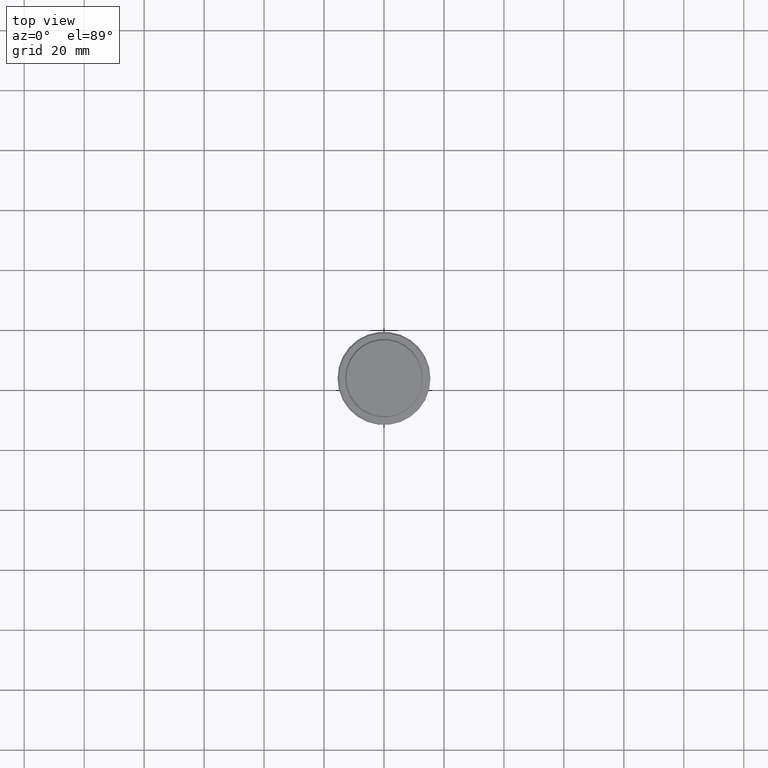
[diagram: clean part render]
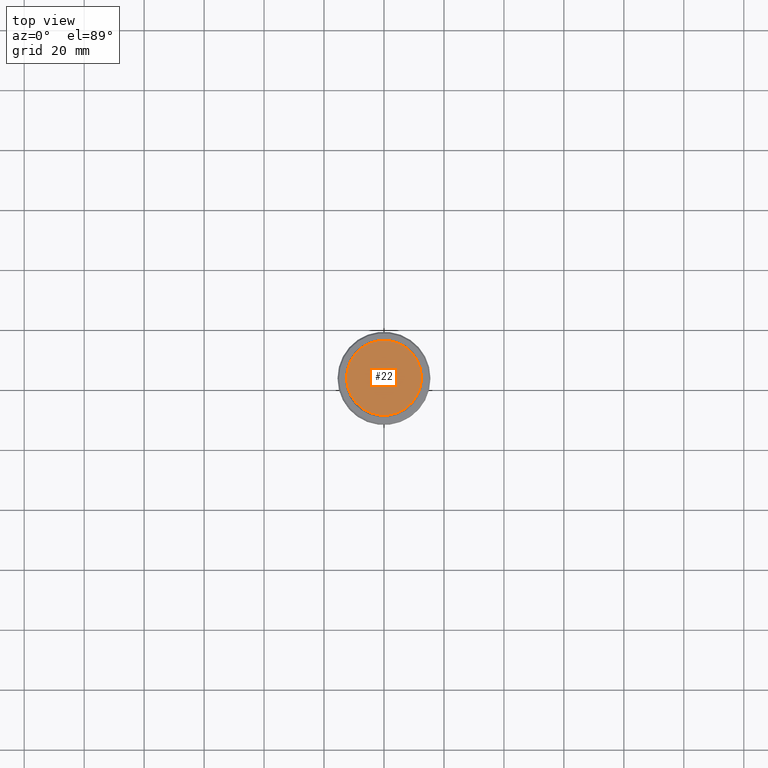
[diagram: same view with one face highlighted and labeled with its STEP entity id]
A machine part, top view. The second image highlights one B-rep face of the part: STEP entity #22.
In plain terms, the highlighted planar face has unit normal (0, -0, 1).
Its self-contained STEP definition (entity closure, byte-faithful):
#22 = ADVANCED_FACE ( 'NONE', ( #717 ), #936, .T. ) ;
#37 = AXIS2_PLACEMENT_3D ( 'NONE', #88, #423, #870 ) ;
#40 = DIRECTION ( 'NONE',  ( -0.000000000000000000, -0.000000000000000000, 1.000000000000000000 ) ) ;
#54 = CARTESIAN_POINT ( 'NONE',  ( 0.000000000000000000, 0.000000000000000000, 0.000000000000000000 ) ) ;
#88 = CARTESIAN_POINT ( 'NONE',  ( 0.000000000000000000, 0.000000000000000000, 0.000000000000000000 ) ) ;
#93 = EDGE_LOOP ( 'NONE', ( #1382, #1064 ) ) ;
#196 = VERTEX_POINT ( 'NONE', #320 ) ;
#272 = DIRECTION ( 'NONE',  ( 1.000000000000000000, 0.000000000000000000, 0.000000000000000000 ) ) ;
#320 = CARTESIAN_POINT ( 'NONE',  ( 12.50000000000001243, 1.561424668912876097E-15, 0.000000000000000000 ) ) ;
#389 = CIRCLE ( 'NONE', #37, 12.50000000000001243 ) ;
#423 = DIRECTION ( 'NONE',  ( -0.000000000000000000, -0.000000000000000000, 1.000000000000000000 ) ) ;
#479 = DIRECTION ( 'NONE',  ( 1.000000000000000000, 0.000000000000000000, 0.000000000000000000 ) ) ;
#621 = EDGE_CURVE ( 'NONE', #682, #196, #389, .T. ) ;
#682 = VERTEX_POINT ( 'NONE', #1134 ) ;
#717 = FACE_OUTER_BOUND ( 'NONE', #93, .T. ) ;
#751 = AXIS2_PLACEMENT_3D ( 'NONE', #1032, #40, #272 ) ;
#756 = AXIS2_PLACEMENT_3D ( 'NONE', #54, #958, #479 ) ;
#870 = DIRECTION ( 'NONE',  ( 1.000000000000000000, 0.000000000000000000, 0.000000000000000000 ) ) ;
#936 = PLANE ( 'NONE',  #756 ) ;
#958 = DIRECTION ( 'NONE',  ( 0.000000000000000000, -0.000000000000000000, 1.000000000000000000 ) ) ;
#1032 = CARTESIAN_POINT ( 'NONE',  ( 0.000000000000000000, 0.000000000000000000, 0.000000000000000000 ) ) ;
#1064 = ORIENTED_EDGE ( 'NONE', *, *, #1153, .T. ) ;
#1134 = CARTESIAN_POINT ( 'NONE',  ( -12.50000000000001243, 0.000000000000000000, 0.000000000000000000 ) ) ;
#1153 = EDGE_CURVE ( 'NONE', #196, #682, #1250, .T. ) ;
#1250 = CIRCLE ( 'NONE', #751, 12.50000000000001243 ) ;
#1382 = ORIENTED_EDGE ( 'NONE', *, *, #621, .T. ) ;